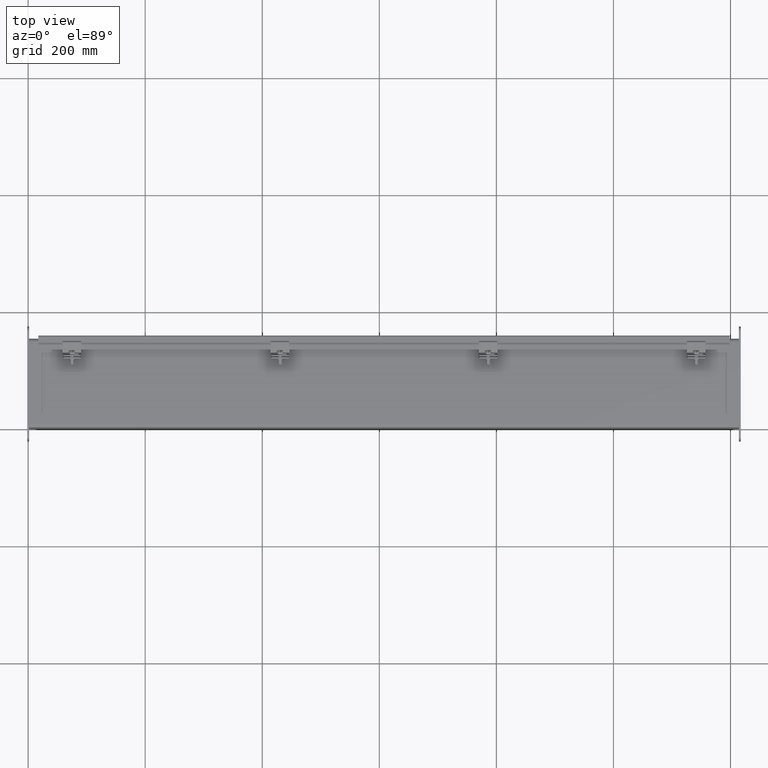
[diagram: clean part render]
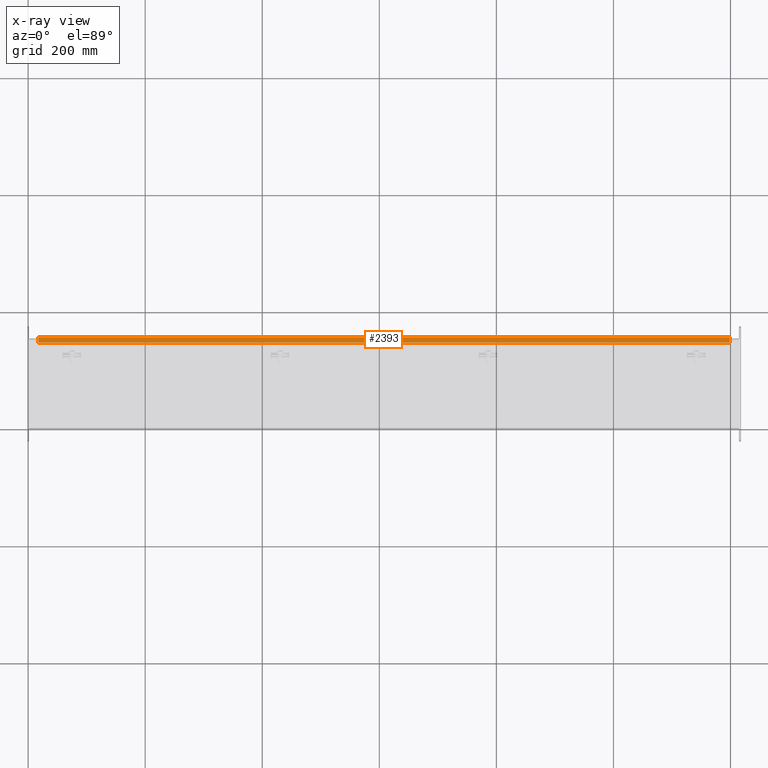
[diagram: x-ray — body ghosted, one internal face saturated and labeled with its STEP entity id]
A machine part, top view, then the same camera in x-ray: the body is ghosted and one INTERNAL B-rep face — a face not visible from any outside direction — is saturated and labeled: STEP entity #2393.
In plain terms, the highlighted planar face has unit normal (0, -0, -1).
Its self-contained STEP definition (entity closure, byte-faithful):
#2065=CARTESIAN_POINT('',(46.5,0.074000000000008,-0.400687422290389));
#2066=VERTEX_POINT('',#2065);
#2074=CARTESIAN_POINT('',(46.5,0.074000000000017,-0.031250000000017));
#2075=VERTEX_POINT('',#2074);
#2076=CARTESIAN_POINT('',(46.5,0.074000000000008,-0.031250000000017));
#2077=DIRECTION('',(0.0,0.0,-1.0));
#2078=VECTOR('',#2077,0.369437422290373);
#2079=LINE('',#2076,#2078);
#2080=EDGE_CURVE('',#2075,#2066,#2079,.T.);
#2316=CARTESIAN_POINT('',(-5.215773E-019,0.074000000000008,-0.031250000000025));
#2317=VERTEX_POINT('',#2316);
#2325=CARTESIAN_POINT('',(-5.588112E-015,0.074,-0.400687422290389));
#2326=VERTEX_POINT('',#2325);
#2327=CARTESIAN_POINT('',(0.0,0.074,-0.400687422290389));
#2328=DIRECTION('',(0.0,0.0,1.0));
#2329=VECTOR('',#2328,0.369437422290364);
#2330=LINE('',#2327,#2329);
#2331=EDGE_CURVE('',#2326,#2317,#2330,.T.);
#2367=CARTESIAN_POINT('',(46.5,0.074000000000008,-0.400687422290389));
#2368=DIRECTION('',(-1.0,0.0,0.0));
#2369=VECTOR('',#2368,46.500000000000007);
#2370=LINE('',#2367,#2369);
#2371=EDGE_CURVE('',#2066,#2326,#2370,.T.);
#2377=CARTESIAN_POINT('',(46.5,0.074000000000008,-0.551));
#2378=DIRECTION('',(0.0,1.0,0.0));
#2379=DIRECTION('',(0.0,0.0,1.0));
#2380=AXIS2_PLACEMENT_3D('',#2377,#2378,#2379);
#2381=PLANE('',#2380);
#2382=ORIENTED_EDGE('',*,*,#2371,.T.);
#2383=ORIENTED_EDGE('',*,*,#2331,.T.);
#2384=CARTESIAN_POINT('',(46.5,0.074000000000017,-0.031250000000017));
#2385=DIRECTION('',(-1.0,0.0,0.0));
#2386=VECTOR('',#2385,46.5);
#2387=LINE('',#2384,#2386);
#2388=EDGE_CURVE('',#2075,#2317,#2387,.T.);
#2389=ORIENTED_EDGE('',*,*,#2388,.F.);
#2390=ORIENTED_EDGE('',*,*,#2080,.T.);
#2391=EDGE_LOOP('',(#2382,#2383,#2389,#2390));
#2392=FACE_OUTER_BOUND('',#2391,.T.);
#2393=ADVANCED_FACE('',(#2392),#2381,.T.);